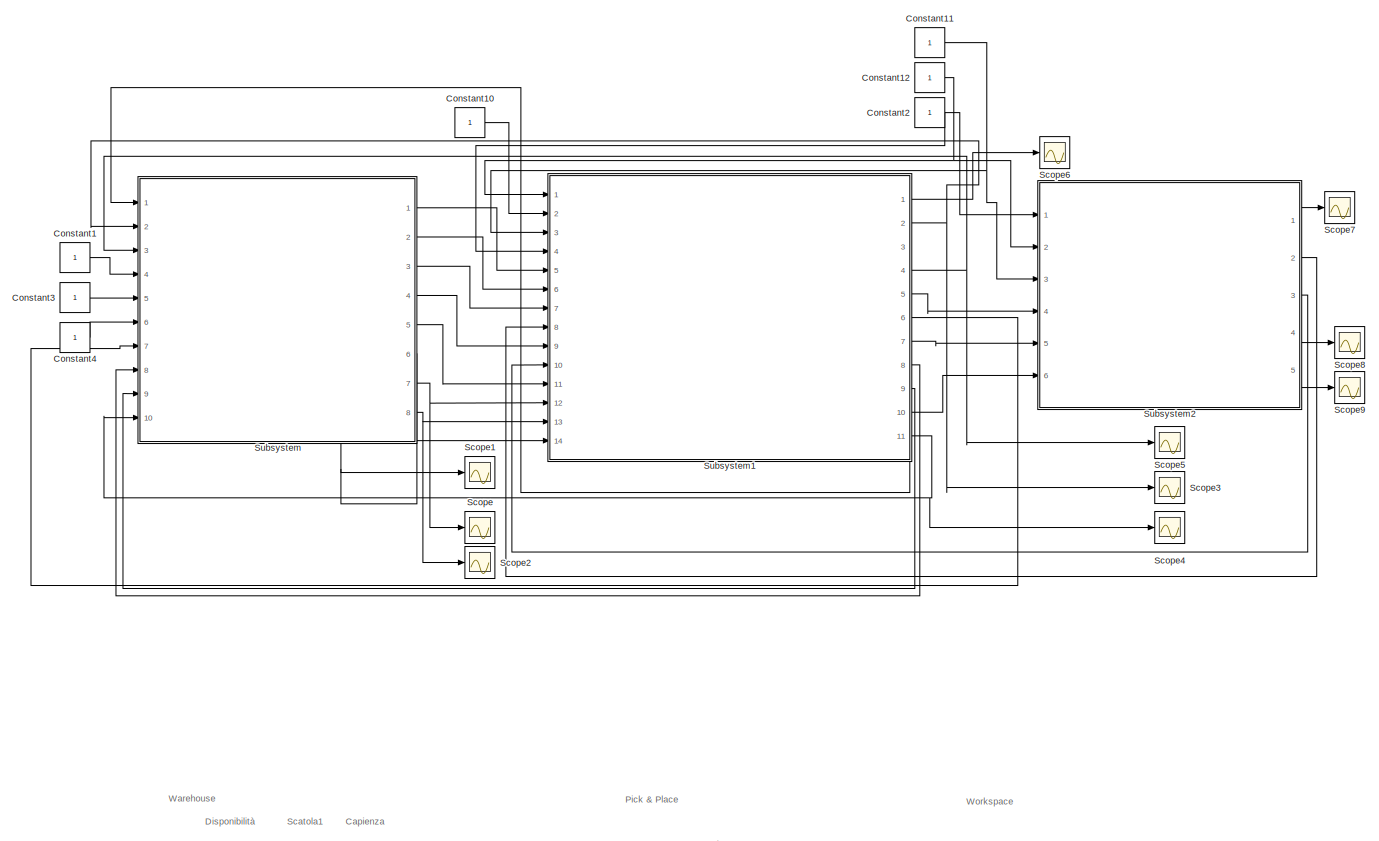
[diagram: root canvas - part 1/3, top left region]
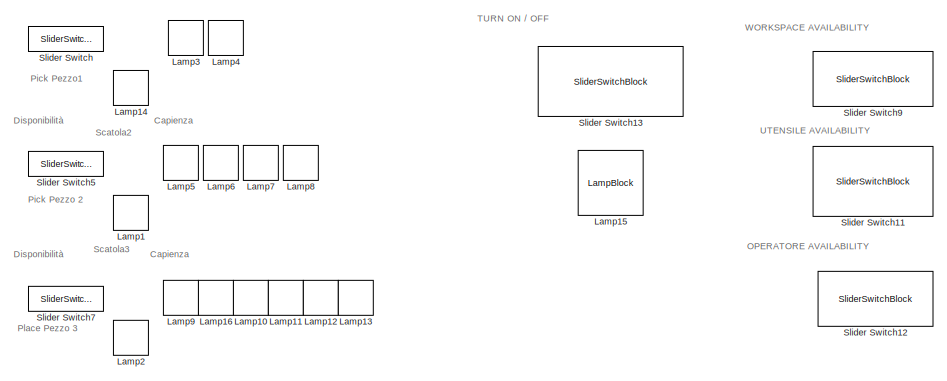
[diagram: root canvas - part 2/3, middle left region]
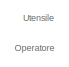
[diagram: root canvas - part 3/3, bottom right region]
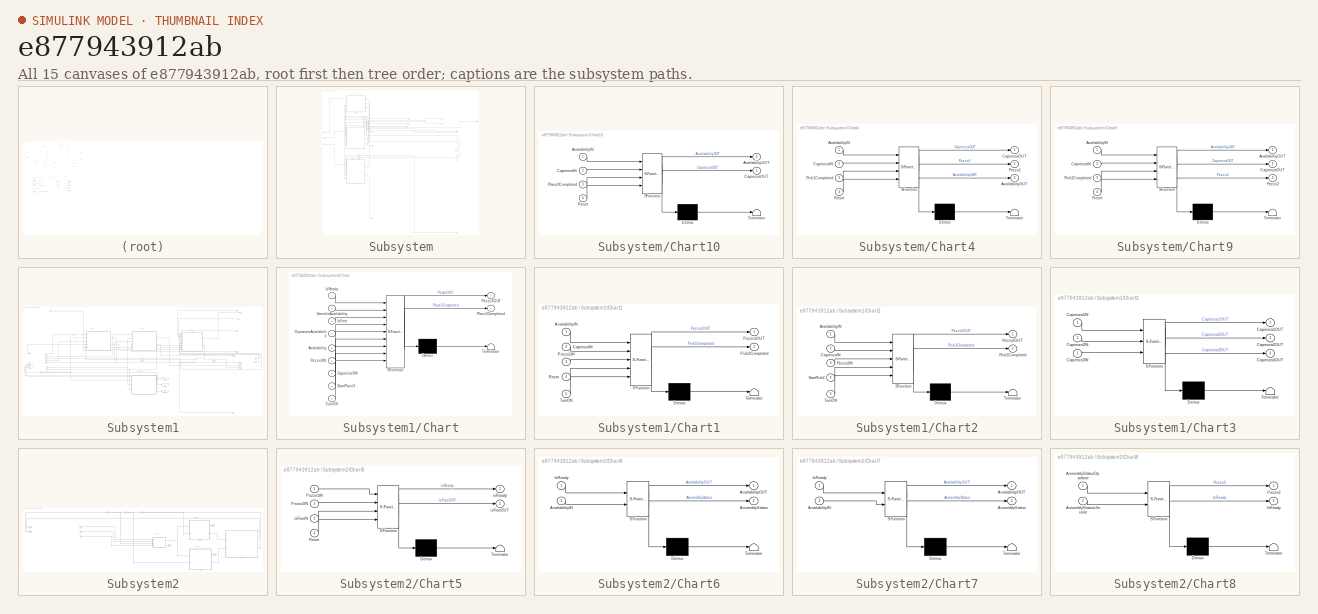
[diagram: thumbnail index - all 15 canvases of the model, root first then tree order]
MODEL slx_e877943912ab
KIND model
CONFIG AbsTol = auto
CONFIG EnableMultiTasking = off
CONFIG FixedStep = auto
CONFIG MaxStep = auto
CONFIG MinStep = auto
CONFIG RelTol = 1e-3
CONFIG SampleTimeConstraint = Unconstrained
CONFIG Solver = VariableStepAuto
CONFIG SolverName = VariableStepAuto
CONFIG StartTime = 0.0
CONFIG StopTime = inf
BLOCK [Constant] Constant1
BLOCK [Constant] Constant10
BLOCK [Constant] Constant11
BLOCK [Constant] Constant12
BLOCK [Constant] Constant2
BLOCK [Constant] Constant3
BLOCK [Constant] Constant4
BLOCK [LampBlock] Lamp1
BLOCK [LampBlock] Lamp10
BLOCK [LampBlock] Lamp11
BLOCK [LampBlock] Lamp12
BLOCK [LampBlock] Lamp13
BLOCK [LampBlock] Lamp14
BLOCK [LampBlock] Lamp15
BLOCK [LampBlock] Lamp16
BLOCK [LampBlock] Lamp2
BLOCK [LampBlock] Lamp3
BLOCK [LampBlock] Lamp4
BLOCK [LampBlock] Lamp5
BLOCK [LampBlock] Lamp6
BLOCK [LampBlock] Lamp7
BLOCK [LampBlock] Lamp8
BLOCK [LampBlock] Lamp9
BLOCK [Scope] Scope
  Floating = off
  NumInputPorts = 1
  Ports = [1]
  ScopeSpecificationString = Simulink.scopes.TimeScopeBlockCfg('CurrentConfiguration', extmgr.ConfigurationSet(extmgr.Configuration('Core','General UI',true),extmgr.Configuration('Core','Source UI',true),extmgr.Configuration('Sources','WiredSimulink',true),extmgr.Configuration('Visuals','Time Domain',true),extmgr.Configuration('Tools','Plot Navigation',true),extmgr.Configuration('Tools','Measurements',true)),'Version','2019a'...<+1ch>
BLOCK [Scope] Scope1
  Floating = off
  NumInputPorts = 1
  Ports = [1]
  ScopeSpecificationString = Simulink.scopes.TimeScopeBlockCfg('CurrentConfiguration', extmgr.ConfigurationSet(extmgr.Configuration('Core','General UI',true),extmgr.Configuration('Core','Source UI',true),extmgr.Configuration('Sources','WiredSimulink',true,'DataLoggingVariableName','ScopeData1'),extmgr.Configuration('Visuals','Time Domain',true),extmgr.Configuration('Tools','Plot Navigation',true),extmgr.Configuration('Tools',...<+40ch>
BLOCK [Scope] Scope2
  Floating = off
  NumInputPorts = 1
  Ports = [1]
  ScopeSpecificationString = Simulink.scopes.TimeScopeBlockCfg('CurrentConfiguration', extmgr.ConfigurationSet(extmgr.Configuration('Core','General UI',true),extmgr.Configuration('Core','Source UI',true),extmgr.Configuration('Sources','WiredSimulink',true,'DataLoggingVariableName','ScopeData2'),extmgr.Configuration('Visuals','Time Domain',true),extmgr.Configuration('Tools','Plot Navigation',true),extmgr.Configuration('Tools',...<+40ch>
BLOCK [Scope] Scope3
  Floating = off
  NumInputPorts = 1
  Ports = [1]
  ScopeSpecificationString = Simulink.scopes.TimeScopeBlockCfg('CurrentConfiguration', extmgr.ConfigurationSet(extmgr.Configuration('Core','General UI',true),extmgr.Configuration('Core','Source UI',true),extmgr.Configuration('Sources','WiredSimulink',true,'DataLoggingVariableName','ScopeData3'),extmgr.Configuration('Visuals','Time Domain',true,'SerializedDisplays',{struct('MinYLimReal','-1.00000','MaxYLimReal','1.00000','YLab...<+1384ch>
BLOCK [Scope] Scope4
  Floating = off
  NumInputPorts = 1
  Ports = [1]
  ScopeSpecificationString = Simulink.scopes.TimeScopeBlockCfg('CurrentConfiguration', extmgr.ConfigurationSet(extmgr.Configuration('Core','General UI',true),extmgr.Configuration('Core','Source UI',true),extmgr.Configuration('Sources','WiredSimulink',true,'DataLoggingVariableName','ScopeData4'),extmgr.Configuration('Visuals','Time Domain',true),extmgr.Configuration('Tools','Plot Navigation',true),extmgr.Configuration('Tools',...<+40ch>
BLOCK [Scope] Scope5
  Floating = off
  NumInputPorts = 1
  Ports = [1]
  ScopeSpecificationString = Simulink.scopes.TimeScopeBlockCfg('CurrentConfiguration', extmgr.ConfigurationSet(extmgr.Configuration('Core','General UI',true),extmgr.Configuration('Core','Source UI',true),extmgr.Configuration('Sources','WiredSimulink',true,'DataLoggingVariableName','ScopeData5'),extmgr.Configuration('Visuals','Time Domain',true),extmgr.Configuration('Tools','Plot Navigation',true),extmgr.Configuration('Tools',...<+40ch>
BLOCK [Scope] Scope6
  Floating = off
  NumInputPorts = 1
  Ports = [1]
  ScopeSpecificationString = Simulink.scopes.TimeScopeBlockCfg('CurrentConfiguration', extmgr.ConfigurationSet(extmgr.Configuration('Core','General UI',true),extmgr.Configuration('Core','Source UI',true),extmgr.Configuration('Sources','WiredSimulink',true,'DataLoggingVariableName','ScopeData1'),extmgr.Configuration('Visuals','Time Domain',true),extmgr.Configuration('Tools','Plot Navigation',true),extmgr.Configuration('Tools',...<+40ch>
BLOCK [Scope] Scope7
  Floating = off
  NumInputPorts = 1
  Ports = [1]
  ScopeSpecificationString = Simulink.scopes.TimeScopeBlockCfg('CurrentConfiguration', extmgr.ConfigurationSet(extmgr.Configuration('Core','General UI',true),extmgr.Configuration('Core','Source UI',true),extmgr.Configuration('Sources','WiredSimulink',true,'DataLoggingVariableName','ScopeData2'),extmgr.Configuration('Visuals','Time Domain',true),extmgr.Configuration('Tools','Plot Navigation',true),extmgr.Configuration('Tools',...<+40ch>
BLOCK [Scope] Scope8
  Floating = off
  NumInputPorts = 1
  Ports = [1]
  ScopeSpecificationString = Simulink.scopes.TimeScopeBlockCfg('CurrentConfiguration', extmgr.ConfigurationSet(extmgr.Configuration('Core','General UI',true),extmgr.Configuration('Core','Source UI',true),extmgr.Configuration('Sources','WiredSimulink',true,'DataLoggingVariableName','ScopeData3'),extmgr.Configuration('Visuals','Time Domain',true),extmgr.Configuration('Tools','Plot Navigation',true),extmgr.Configuration('Tools',...<+40ch>
BLOCK [Scope] Scope9
  Floating = off
  NumInputPorts = 1
  Ports = [1]
  ScopeSpecificationString = Simulink.scopes.TimeScopeBlockCfg('CurrentConfiguration', extmgr.ConfigurationSet(extmgr.Configuration('Core','General UI',true),extmgr.Configuration('Core','Source UI',true),extmgr.Configuration('Sources','WiredSimulink',true,'DataLoggingVariableName','ScopeData4'),extmgr.Configuration('Visuals','Time Domain',true),extmgr.Configuration('Tools','Plot Navigation',true),extmgr.Configuration('Tools',...<+40ch>
BLOCK [SliderSwitchBlock] Slider Switch
BLOCK [SliderSwitchBlock] Slider Switch11
BLOCK [SliderSwitchBlock] Slider Switch12
BLOCK [SliderSwitchBlock] Slider Switch13
BLOCK [SliderSwitchBlock] Slider Switch5
BLOCK [SliderSwitchBlock] Slider Switch7
BLOCK [SliderSwitchBlock] Slider Switch9
BLOCK [SubSystem] Subsystem
  Ports = [10, 8]
  RequestExecContextInheritance = off
BLOCK [SubSystem] Subsystem/Chart10
  BlockKeywords = __PRM__SERIALIZED__DATA__:Stateflow Chart,Stateflow Diagram
  ErrorFcn = Stateflow.Translate.translate
  PermitHierarchicalResolution = ExplicitOnly
  Ports = [4, 2]
  RequestExecContextInheritance = off
  SFBlockType = Chart
  TreatAsAtomicUnit = on
BLOCK [Demux] Subsystem/Chart10/ Demux 
  Outputs = 1
  Ports = [1, 1]
BLOCK [S-Function] Subsystem/Chart10/ SFunction 
  EnableBusSupport = on
  FunctionName = sf_sfun
  PortCounts = [4 3]
  Ports = [4, 3]
  SFcnIsStateOwnerBlock = off
  SFunctionDeploymentMode = off
  Tag = Stateflow S-Function simulink_model_complete 13
BLOCK [Terminator] Subsystem/Chart10/ Terminator 
BLOCK [Inport] Subsystem/Chart10/AvailabilityIN
  IconDisplay = Port number
BLOCK [Outport] Subsystem/Chart10/AvailabilityOUT
  IconDisplay = Port number
BLOCK [Inport] Subsystem/Chart10/CapienzaIN
  IconDisplay = Port number
  Port = 2
BLOCK [Outport] Subsystem/Chart10/CapienzaOUT
  IconDisplay = Port number
  Port = 2
BLOCK [Inport] Subsystem/Chart10/Place3Completed
  IconDisplay = Port number
  Port = 3
BLOCK [Inport] Subsystem/Chart10/Reset
  IconDisplay = Port number
  Port = 4
BLOCK [SubSystem] Subsystem/Chart4
  BlockKeywords = __PRM__SERIALIZED__DATA__:Stateflow Chart,Stateflow Diagram
  ErrorFcn = Stateflow.Translate.translate
  PermitHierarchicalResolution = ExplicitOnly
  Ports = [4, 3]
  RequestExecContextInheritance = off
  SFBlockType = Chart
  TreatAsAtomicUnit = on
BLOCK [Demux] Subsystem/Chart4/ Demux 
  Outputs = 1
  Ports = [1, 1]
BLOCK [S-Function] Subsystem/Chart4/ SFunction 
  EnableBusSupport = on
  FunctionName = sf_sfun
  PortCounts = [4 4]
  Ports = [4, 4]
  SFcnIsStateOwnerBlock = off
  SFunctionDeploymentMode = off
  Tag = Stateflow S-Function simulink_model_complete 5
BLOCK [Terminator] Subsystem/Chart4/ Terminator 
BLOCK [Inport] Subsystem/Chart4/AvailabilityIN
  IconDisplay = Port number
BLOCK [Outport] Subsystem/Chart4/AvailabilityOUT
  IconDisplay = Port number
  Port = 3
BLOCK [Inport] Subsystem/Chart4/CapienzaIN
  IconDisplay = Port number
  Port = 2
BLOCK [Outport] Subsystem/Chart4/CapienzaOUT
  IconDisplay = Port number
BLOCK [Outport] Subsystem/Chart4/Pezzo1
  IconDisplay = Port number
  Port = 2
BLOCK [Inport] Subsystem/Chart4/Pick1Completed
  IconDisplay = Port number
  Port = 3
BLOCK [Inport] Subsystem/Chart4/Reset
  IconDisplay = Port number
  Port = 4
BLOCK [SubSystem] Subsystem/Chart9
  BlockKeywords = __PRM__SERIALIZED__DATA__:Stateflow Chart,Stateflow Diagram
  ErrorFcn = Stateflow.Translate.translate
  PermitHierarchicalResolution = ExplicitOnly
  Ports = [4, 3]
  RequestExecContextInheritance = off
  SFBlockType = Chart
  TreatAsAtomicUnit = on
BLOCK [Demux] Subsystem/Chart9/ Demux 
  Outputs = 1
  Ports = [1, 1]
BLOCK [S-Function] Subsystem/Chart9/ SFunction 
  EnableBusSupport = on
  FunctionName = sf_sfun
  PortCounts = [4 4]
  Ports = [4, 4]
  SFcnIsStateOwnerBlock = off
  SFunctionDeploymentMode = off
  Tag = Stateflow S-Function simulink_model_complete 12
BLOCK [Terminator] Subsystem/Chart9/ Terminator 
BLOCK [Inport] Subsystem/Chart9/AvailabilityIN
  IconDisplay = Port number
BLOCK [Outport] Subsystem/Chart9/AvailabilityOUT
  IconDisplay = Port number
BLOCK [Inport] Subsystem/Chart9/CapienzaIN
  IconDisplay = Port number
  Port = 2
BLOCK [Outport] Subsystem/Chart9/CapienzaOUT
  IconDisplay = Port number
  Port = 2
BLOCK [Outport] Subsystem/Chart9/Pezzo2
  IconDisplay = Port number
  Port = 3
BLOCK [Inport] Subsystem/Chart9/Pick2Completed
  IconDisplay = Port number
  Port = 3
BLOCK [Inport] Subsystem/Chart9/Reset
  IconDisplay = Port number
  Port = 4
BLOCK [Inport] Subsystem/In1
  IconDisplay = Port number
BLOCK [Inport] Subsystem/In10
  IconDisplay = Port number
  Port = 10
BLOCK [Inport] Subsystem/In2
  IconDisplay = Port number
  Port = 2
BLOCK [Inport] Subsystem/In3
  IconDisplay = Port number
  Port = 3
BLOCK [Inport] Subsystem/In4
  IconDisplay = Port number
  Port = 4
BLOCK [Inport] Subsystem/In5
  IconDisplay = Port number
  Port = 5
BLOCK [Inport] Subsystem/In6
  IconDisplay = Port number
  Port = 6
BLOCK [Inport] Subsystem/In7
  IconDisplay = Port number
  Port = 7
BLOCK [Inport] Subsystem/In8
  IconDisplay = Port number
  Port = 8
BLOCK [Inport] Subsystem/In9
  IconDisplay = Port number
  Port = 9
BLOCK [Memory] Subsystem/Memory1
BLOCK [Memory] Subsystem/Memory2
BLOCK [Memory] Subsystem/Memory4
BLOCK [Memory] Subsystem/Memory5
BLOCK [Memory] Subsystem/Memory6
BLOCK [Memory] Subsystem/Memory7
BLOCK [Outport] Subsystem/Out1
  IconDisplay = Port number
BLOCK [Outport] Subsystem/Out2
  IconDisplay = Port number
  Port = 2
BLOCK [Outport] Subsystem/Out3
  IconDisplay = Port number
  Port = 3
BLOCK [Outport] Subsystem/Out4
  IconDisplay = Port number
  Port = 4
BLOCK [Outport] Subsystem/Out5
  IconDisplay = Port number
  Port = 5
BLOCK [Outport] Subsystem/Out6
  IconDisplay = Port number
  Port = 6
BLOCK [Outport] Subsystem/Out7
  IconDisplay = Port number
  Port = 7
BLOCK [Outport] Subsystem/Out8
  IconDisplay = Port number
  Port = 8
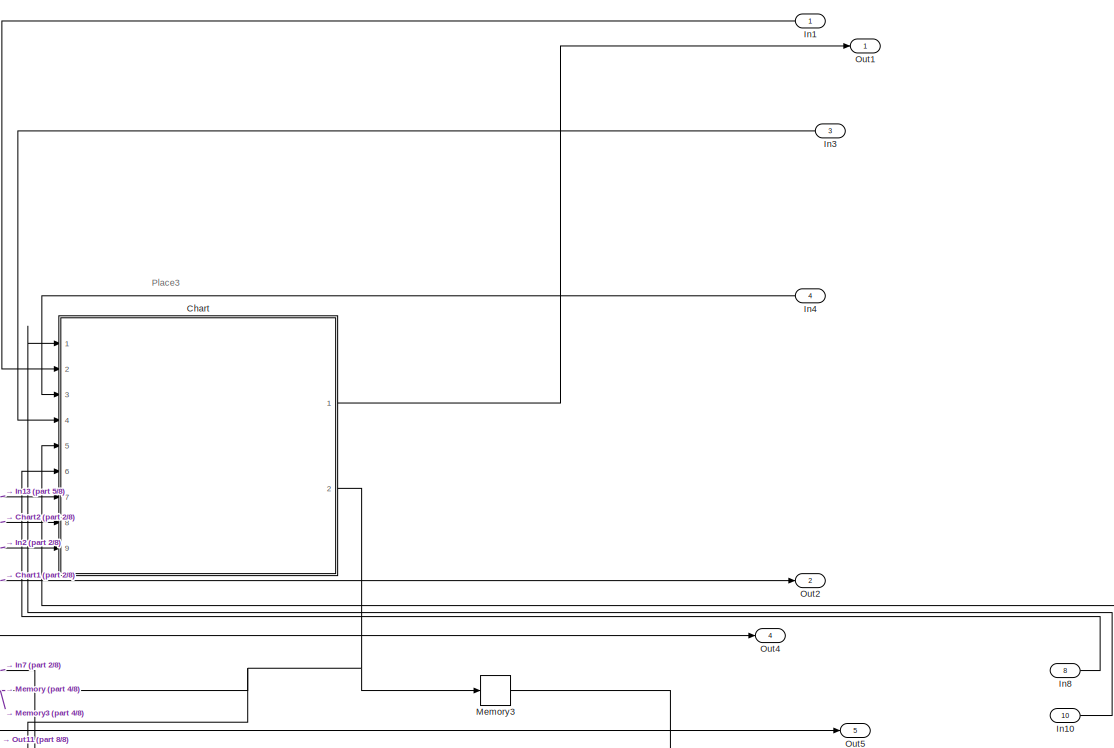
[diagram: Subsystem1 - part 1/8, top right region]
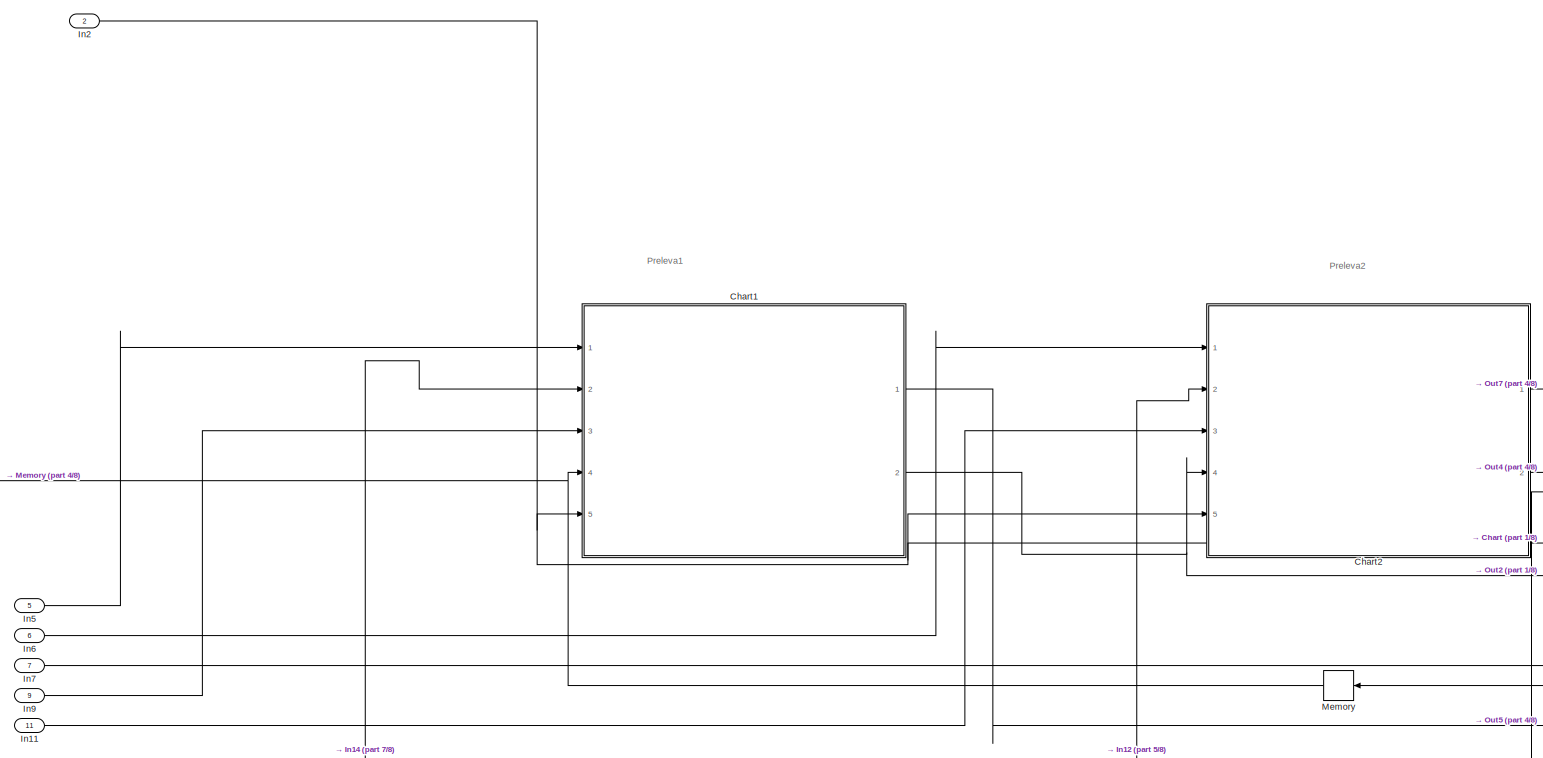
[diagram: Subsystem1 - part 2/8, top left region]
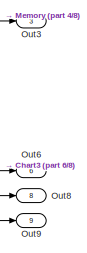
[diagram: Subsystem1 - part 3/8, middle left region]
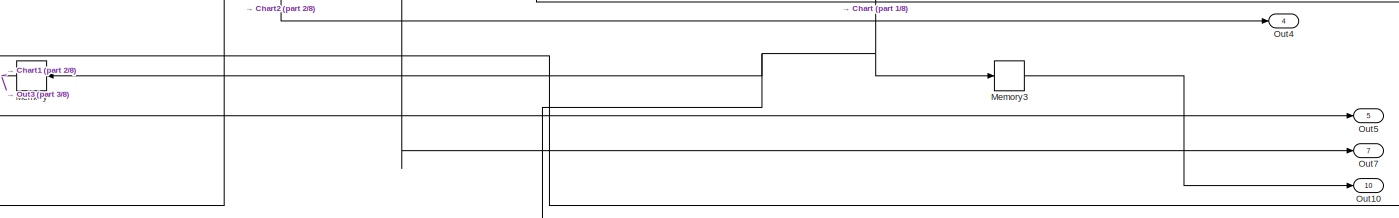
[diagram: Subsystem1 - part 4/8, middle right region]
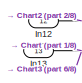
[diagram: Subsystem1 - part 5/8, middle left region]
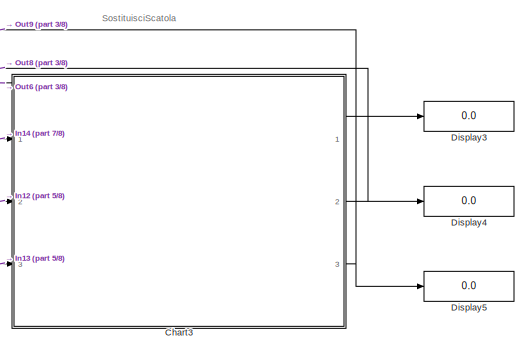
[diagram: Subsystem1 - part 6/8, bottom center region]
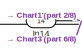
[diagram: Subsystem1 - part 7/8, middle left region]
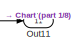
[diagram: Subsystem1 - part 8/8, bottom right region]
BLOCK [SubSystem] Subsystem1
  Ports = [14, 11]
  RequestExecContextInheritance = off
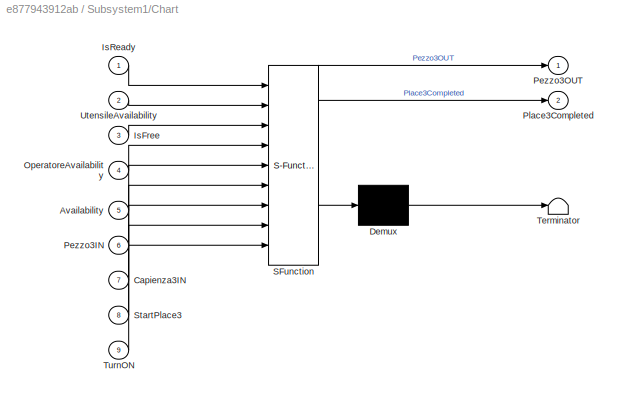
BLOCK [SubSystem] Subsystem1/Chart
  BlockKeywords = __PRM__SERIALIZED__DATA__:Stateflow Chart,Stateflow Diagram
  ErrorFcn = Stateflow.Translate.translate
  PermitHierarchicalResolution = ExplicitOnly
  Ports = [9, 2]
  RequestExecContextInheritance = off
  SFBlockType = Chart
  TreatAsAtomicUnit = on
BLOCK [Demux] Subsystem1/Chart/ Demux 
  Outputs = 1
  Ports = [1, 1]
BLOCK [S-Function] Subsystem1/Chart/ SFunction 
  EnableBusSupport = on
  FunctionName = sf_sfun
  PortCounts = [9 3]
  Ports = [9, 3]
  SFcnIsStateOwnerBlock = off
  SFunctionDeploymentMode = off
  Tag = Stateflow S-Function simulink_model_complete 3
BLOCK [Terminator] Subsystem1/Chart/ Terminator 
BLOCK [Inport] Subsystem1/Chart/Availability
  IconDisplay = Port number
  Port = 5
BLOCK [Inport] Subsystem1/Chart/Capienza3IN
  IconDisplay = Port number
  Port = 7
BLOCK [Inport] Subsystem1/Chart/IsFree
  IconDisplay = Port number
  Port = 3
BLOCK [Inport] Subsystem1/Chart/IsReady
  IconDisplay = Port number
BLOCK [Inport] Subsystem1/Chart/OperatoreAvailability
  IconDisplay = Port number
  Port = 4
BLOCK [Inport] Subsystem1/Chart/Pezzo3IN
  IconDisplay = Port number
  Port = 6
BLOCK [Outport] Subsystem1/Chart/Pezzo3OUT
  IconDisplay = Port number
BLOCK [Outport] Subsystem1/Chart/Place3Completed
  IconDisplay = Port number
  Port = 2
BLOCK [Inport] Subsystem1/Chart/StartPlace3
  IconDisplay = Port number
  Port = 8
BLOCK [Inport] Subsystem1/Chart/TurnON
  IconDisplay = Port number
  Port = 9
BLOCK [Inport] Subsystem1/Chart/UtensileAvailability
  IconDisplay = Port number
  Port = 2
BLOCK [SubSystem] Subsystem1/Chart1
  BlockKeywords = __PRM__SERIALIZED__DATA__:Stateflow Chart,Stateflow Diagram
  ErrorFcn = Stateflow.Translate.translate
  PermitHierarchicalResolution = ExplicitOnly
  Ports = [5, 2]
  RequestExecContextInheritance = off
  SFBlockType = Chart
  TreatAsAtomicUnit = on
BLOCK [Demux] Subsystem1/Chart1/ Demux 
  Outputs = 1
  Ports = [1, 1]
BLOCK [S-Function] Subsystem1/Chart1/ SFunction 
  EnableBusSupport = on
  FunctionName = sf_sfun
  PortCounts = [5 3]
  Ports = [5, 3]
  SFcnIsStateOwnerBlock = off
  SFunctionDeploymentMode = off
  Tag = Stateflow S-Function simulink_model_complete 1
BLOCK [Terminator] Subsystem1/Chart1/ Terminator 
BLOCK [Inport] Subsystem1/Chart1/AvailabilityIN
  IconDisplay = Port number
BLOCK [Inport] Subsystem1/Chart1/CapienzaIN
  IconDisplay = Port number
  Port = 2
BLOCK [Inport] Subsystem1/Chart1/Pezzo1IN
  IconDisplay = Port number
  Port = 3
BLOCK [Outport] Subsystem1/Chart1/Pezzo1OUT
  IconDisplay = Port number
BLOCK [Outport] Subsystem1/Chart1/Pick1Completed
  IconDisplay = Port number
  Port = 2
BLOCK [Inport] Subsystem1/Chart1/Reset
  IconDisplay = Port number
  Port = 4
BLOCK [Inport] Subsystem1/Chart1/TurnON
  IconDisplay = Port number
  Port = 5
BLOCK [SubSystem] Subsystem1/Chart2
  BlockKeywords = __PRM__SERIALIZED__DATA__:Stateflow Chart,Stateflow Diagram
  ErrorFcn = Stateflow.Translate.translate
  PermitHierarchicalResolution = ExplicitOnly
  Ports = [5, 2]
  RequestExecContextInheritance = off
  SFBlockType = Chart
  TreatAsAtomicUnit = on
BLOCK [Demux] Subsystem1/Chart2/ Demux 
  Outputs = 1
  Ports = [1, 1]
BLOCK [S-Function] Subsystem1/Chart2/ SFunction 
  EnableBusSupport = on
  FunctionName = sf_sfun
  PortCounts = [5 3]
  Ports = [5, 3]
  SFcnIsStateOwnerBlock = off
  SFunctionDeploymentMode = off
  Tag = Stateflow S-Function simulink_model_complete 2
BLOCK [Terminator] Subsystem1/Chart2/ Terminator 
BLOCK [Inport] Subsystem1/Chart2/AvailabilityIN
  IconDisplay = Port number
BLOCK [Inport] Subsystem1/Chart2/CapienzaIN
  IconDisplay = Port number
  Port = 2
BLOCK [Inport] Subsystem1/Chart2/Pezzo2IN
  IconDisplay = Port number
  Port = 3
BLOCK [Outport] Subsystem1/Chart2/Pezzo2OUT
  IconDisplay = Port number
BLOCK [Outport] Subsystem1/Chart2/Pick2Completed
  IconDisplay = Port number
  Port = 2
BLOCK [Inport] Subsystem1/Chart2/StartPick2
  IconDisplay = Port number
  Port = 4
BLOCK [Inport] Subsystem1/Chart2/TurnON
  IconDisplay = Port number
  Port = 5
BLOCK [SubSystem] Subsystem1/Chart3
  BlockKeywords = __PRM__SERIALIZED__DATA__:Stateflow Chart,Stateflow Diagram
  ErrorFcn = Stateflow.Translate.translate
  PermitHierarchicalResolution = ExplicitOnly
  Ports = [3, 3]
  RequestExecContextInheritance = off
  SFBlockType = Chart
  TreatAsAtomicUnit = on
BLOCK [Demux] Subsystem1/Chart3/ Demux 
  Outputs = 1
  Ports = [1, 1]
BLOCK [S-Function] Subsystem1/Chart3/ SFunction 
  EnableBusSupport = on
  FunctionName = sf_sfun
  PortCounts = [3 4]
  Ports = [3, 4]
  SFcnIsStateOwnerBlock = off
  SFunctionDeploymentMode = off
  Tag = Stateflow S-Function simulink_model_complete 4
BLOCK [Terminator] Subsystem1/Chart3/ Terminator 
BLOCK [Inport] Subsystem1/Chart3/Capienza1IN
  IconDisplay = Port number
BLOCK [Outport] Subsystem1/Chart3/Capienza1OUT
  IconDisplay = Port number
BLOCK [Inport] Subsystem1/Chart3/Capienza2IN
  IconDisplay = Port number
  Port = 2
BLOCK [Outport] Subsystem1/Chart3/Capienza2OUT
  IconDisplay = Port number
  Port = 2
BLOCK [Inport] Subsystem1/Chart3/Capienza3IN
  IconDisplay = Port number
  Port = 3
BLOCK [Outport] Subsystem1/Chart3/Capienza3OUT
  IconDisplay = Port number
  Port = 3
BLOCK [Display] Subsystem1/Display3
  Decimation = 1
  Ports = [1]
BLOCK [Display] Subsystem1/Display4
  Decimation = 1
  Ports = [1]
BLOCK [Display] Subsystem1/Display5
  Decimation = 1
  Ports = [1]
BLOCK [Inport] Subsystem1/In1
  IconDisplay = Port number
BLOCK [Inport] Subsystem1/In10
  IconDisplay = Port number
  Port = 10
BLOCK [Inport] Subsystem1/In11
  IconDisplay = Port number
  Port = 11
BLOCK [Inport] Subsystem1/In12
  IconDisplay = Port number
  Port = 12
BLOCK [Inport] Subsystem1/In13
  IconDisplay = Port number
  Port = 13
BLOCK [Inport] Subsystem1/In14
  IconDisplay = Port number
  Port = 14
BLOCK [Inport] Subsystem1/In2
  IconDisplay = Port number
  Port = 2
BLOCK [Inport] Subsystem1/In3
  IconDisplay = Port number
  Port = 3
BLOCK [Inport] Subsystem1/In4
  IconDisplay = Port number
  Port = 4
BLOCK [Inport] Subsystem1/In5
  IconDisplay = Port number
  Port = 5
BLOCK [Inport] Subsystem1/In6
  IconDisplay = Port number
  Port = 6
BLOCK [Inport] Subsystem1/In7
  IconDisplay = Port number
  Port = 7
BLOCK [Inport] Subsystem1/In8
  IconDisplay = Port number
  Port = 8
BLOCK [Inport] Subsystem1/In9
  IconDisplay = Port number
  Port = 9
BLOCK [Memory] Subsystem1/Memory
BLOCK [Memory] Subsystem1/Memory3
BLOCK [Outport] Subsystem1/Out1
  IconDisplay = Port number
BLOCK [Outport] Subsystem1/Out10
  IconDisplay = Port number
  Port = 10
BLOCK [Outport] Subsystem1/Out11
  IconDisplay = Port number
  Port = 11
BLOCK [Outport] Subsystem1/Out2
  IconDisplay = Port number
  Port = 2
BLOCK [Outport] Subsystem1/Out3
  IconDisplay = Port number
  Port = 3
BLOCK [Outport] Subsystem1/Out4
  IconDisplay = Port number
  Port = 4
BLOCK [Outport] Subsystem1/Out5
  IconDisplay = Port number
  Port = 5
BLOCK [Outport] Subsystem1/Out6
  IconDisplay = Port number
  Port = 6
BLOCK [Outport] Subsystem1/Out7
  IconDisplay = Port number
  Port = 7
BLOCK [Outport] Subsystem1/Out8
  IconDisplay = Port number
  Port = 8
BLOCK [Outport] Subsystem1/Out9
  IconDisplay = Port number
  Port = 9
BLOCK [SubSystem] Subsystem2
  Ports = [6, 5]
  RequestExecContextInheritance = off
BLOCK [SubSystem] Subsystem2/Chart5
  BlockKeywords = __PRM__SERIALIZED__DATA__:Stateflow Chart,Stateflow Diagram
  ErrorFcn = Stateflow.Translate.translate
  PermitHierarchicalResolution = ExplicitOnly
  Ports = [4, 2]
  RequestExecContextInheritance = off
  SFBlockType = Chart
  TreatAsAtomicUnit = on
BLOCK [Demux] Subsystem2/Chart5/ Demux 
  Outputs = 1
  Ports = [1, 1]
BLOCK [S-Function] Subsystem2/Chart5/ SFunction 
  EnableBusSupport = on
  FunctionName = sf_sfun
  PortCounts = [4 3]
  Ports = [4, 3]
  SFcnIsStateOwnerBlock = off
  SFunctionDeploymentMode = off
  Tag = Stateflow S-Function simulink_model_complete 7
BLOCK [Terminator] Subsystem2/Chart5/ Terminator 
BLOCK [Inport] Subsystem2/Chart5/Pezzo1IN
  IconDisplay = Port number
BLOCK [Inport] Subsystem2/Chart5/Pezzo2IN
  IconDisplay = Port number
  Port = 2
BLOCK [Inport] Subsystem2/Chart5/Reset
  IconDisplay = Port number
  Port = 4
BLOCK [Inport] Subsystem2/Chart5/isFreeIN
  IconDisplay = Port number
  Port = 3
BLOCK [Outport] Subsystem2/Chart5/isFreeOUT
  IconDisplay = Port number
  Port = 2
  VectorParamsAs1DForOutWhenUnconnected = on
BLOCK [Outport] Subsystem2/Chart5/isReady
  IconDisplay = Port number
  VectorParamsAs1DForOutWhenUnconnected = on
BLOCK [SubSystem] Subsystem2/Chart6
  BlockKeywords = __PRM__SERIALIZED__DATA__:Stateflow Chart,Stateflow Diagram
  ErrorFcn = Stateflow.Translate.translate
  PermitHierarchicalResolution = ExplicitOnly
  Ports = [2, 2]
  RequestExecContextInheritance = off
  SFBlockType = Chart
  TreatAsAtomicUnit = on
BLOCK [Demux] Subsystem2/Chart6/ Demux 
  Outputs = 1
  Ports = [1, 1]
BLOCK [S-Function] Subsystem2/Chart6/ SFunction 
  EnableBusSupport = on
  FunctionName = sf_sfun
  PortCounts = [2 3]
  Ports = [2, 3]
  SFcnIsStateOwnerBlock = off
  SFunctionDeploymentMode = off
  Tag = Stateflow S-Function simulink_model_complete 8
BLOCK [Terminator] Subsystem2/Chart6/ Terminator 
BLOCK [Outport] Subsystem2/Chart6/AssemblyStatus
  IconDisplay = Port number
  Port = 2
  VectorParamsAs1DForOutWhenUnconnected = on
BLOCK [Inport] Subsystem2/Chart6/AvailabilityIN
  IconDisplay = Port number
  Port = 2
BLOCK [Outport] Subsystem2/Chart6/AvailabilityOUT
  IconDisplay = Port number
  VectorParamsAs1DForOutWhenUnconnected = on
BLOCK [Inport] Subsystem2/Chart6/IsReady
  IconDisplay = Port number
BLOCK [SubSystem] Subsystem2/Chart7
  BlockKeywords = __PRM__SERIALIZED__DATA__:Stateflow Chart,Stateflow Diagram
  ErrorFcn = Stateflow.Translate.translate
  PermitHierarchicalResolution = ExplicitOnly
  Ports = [2, 2]
  RequestExecContextInheritance = off
  SFBlockType = Chart
  TreatAsAtomicUnit = on
BLOCK [Demux] Subsystem2/Chart7/ Demux 
  Outputs = 1
  Ports = [1, 1]
BLOCK [S-Function] Subsystem2/Chart7/ SFunction 
  EnableBusSupport = on
  FunctionName = sf_sfun
  PortCounts = [2 3]
  Ports = [2, 3]
  SFcnIsStateOwnerBlock = off
  SFunctionDeploymentMode = off
  Tag = Stateflow S-Function simulink_model_complete 9
BLOCK [Terminator] Subsystem2/Chart7/ Terminator 
BLOCK [Outport] Subsystem2/Chart7/AssemblyStatus
  IconDisplay = Port number
  Port = 2
  VectorParamsAs1DForOutWhenUnconnected = on
BLOCK [Inport] Subsystem2/Chart7/AvailabilityIN
  IconDisplay = Port number
  Port = 2
BLOCK [Outport] Subsystem2/Chart7/AvailabilityOUT
  IconDisplay = Port number
  VectorParamsAs1DForOutWhenUnconnected = on
BLOCK [Inport] Subsystem2/Chart7/IsReady
  IconDisplay = Port number
BLOCK [SubSystem] Subsystem2/Chart8
  BlockKeywords = __PRM__SERIALIZED__DATA__:Stateflow Chart,Stateflow Diagram
  ErrorFcn = Stateflow.Translate.translate
  PermitHierarchicalResolution = ExplicitOnly
  Ports = [2, 2]
  RequestExecContextInheritance = off
  SFBlockType = Chart
  TreatAsAtomicUnit = on
BLOCK [Demux] Subsystem2/Chart8/ Demux 
  Outputs = 1
  Ports = [1, 1]
BLOCK [S-Function] Subsystem2/Chart8/ SFunction 
  EnableBusSupport = on
  FunctionName = sf_sfun
  PortCounts = [2 3]
  Ports = [2, 3]
  SFcnIsStateOwnerBlock = off
  SFunctionDeploymentMode = off
  Tag = Stateflow S-Function simulink_model_complete 10
BLOCK [Terminator] Subsystem2/Chart8/ Terminator 
BLOCK [Inport] Subsystem2/Chart8/AssemblyStatusOparatore
  IconDisplay = Port number
BLOCK [Inport] Subsystem2/Chart8/AssemblyStatusUtensile
  IconDisplay = Port number
  Port = 2
BLOCK [Outport] Subsystem2/Chart8/IsReady
  IconDisplay = Port number
  Port = 2
  VectorParamsAs1DForOutWhenUnconnected = on
BLOCK [Outport] Subsystem2/Chart8/Pezzo3
  IconDisplay = Port number
  VectorParamsAs1DForOutWhenUnconnected = on
BLOCK [Inport] Subsystem2/In1
  IconDisplay = Port number
BLOCK [Inport] Subsystem2/In2
  IconDisplay = Port number
  Port = 2
BLOCK [Inport] Subsystem2/In3
  IconDisplay = Port number
  Port = 3
BLOCK [Inport] Subsystem2/In4
  IconDisplay = Port number
  Port = 4
BLOCK [Inport] Subsystem2/In5
  IconDisplay = Port number
  Port = 5
BLOCK [Inport] Subsystem2/In6
  IconDisplay = Port number
  Port = 6
BLOCK [Outport] Subsystem2/Out1
  IconDisplay = Port number
BLOCK [Outport] Subsystem2/Out2
  IconDisplay = Port number
  Port = 2
BLOCK [Outport] Subsystem2/Out3
  IconDisplay = Port number
  Port = 3
BLOCK [Outport] Subsystem2/Out4
  IconDisplay = Port number
  Port = 4
BLOCK [Outport] Subsystem2/Out5
  IconDisplay = Port number
  Port = 5
ANNOTATION (root): TURN ON / OFF
ANNOTATION (root): Capienza
ANNOTATION (root): Disponibilità
ANNOTATION (root): OPERATORE AVAILABILITY
ANNOTATION (root): Operatore
ANNOTATION (root): Pick & Place
ANNOTATION (root): Pick Pezzo 2
ANNOTATION (root): Pick Pezzo1
ANNOTATION (root): Place Pezzo 3
ANNOTATION (root): Scatola1
ANNOTATION (root): Scatola2
ANNOTATION (root): Scatola3
ANNOTATION (root): UTENSILE AVAILABILITY
ANNOTATION (root): Utensile
ANNOTATION (root): WORKSPACE AVAILABILITY
ANNOTATION (root): Warehouse
ANNOTATION (root): Workspace
ANNOTATION Subsystem: Scatola1
ANNOTATION Subsystem: Scatola2
ANNOTATION Subsystem: Scatola3
ANNOTATION Subsystem1: Place3
ANNOTATION Subsystem1: Preleva1
ANNOTATION Subsystem1: Preleva2
ANNOTATION Subsystem1: SostituisciScatola
ANNOTATION Subsystem2: Check
ANNOTATION Subsystem2: Operatore
ANNOTATION Subsystem2: Utensile
LINE Constant10:1 -> Subsystem1:2
NET Constant11:1 -> Subsystem1:3, Subsystem2:3
NET Constant12:1 -> Subsystem1:1, Subsystem2:2
LINE Constant1:1 -> Subsystem:4
NET Constant2:1 -> Subsystem1:4, Subsystem2:1
LINE Constant3:1 -> Subsystem:5
LINE Constant4:1 -> Subsystem:6
LINE Subsystem/Chart10:1 -> Subsystem/Out3:1
LINE Subsystem/Chart10:2 -> Subsystem/Out8:1
LINE Subsystem/Chart4:1 -> Subsystem/Out6:1
LINE Subsystem/Chart4:2 -> Subsystem/Out4:1
LINE Subsystem/Chart4:3 -> Subsystem/Out1:1
LINE Subsystem/Chart9:1 -> Subsystem/Out2:1
LINE Subsystem/Chart9:2 -> Subsystem/Out7:1
LINE Subsystem/Chart9:3 -> Subsystem/Out5:1
LINE Subsystem/In10:1 -> Subsystem/Memory6:1
NET Subsystem/In1:1 -> Subsystem/Chart4:4, Subsystem/Chart9:4
LINE Subsystem/In2:1 -> Subsystem/Memory2:1
LINE Subsystem/In3:1 -> Subsystem/Memory5:1
LINE Subsystem/In4:1 -> Subsystem/Chart4:1
LINE Subsystem/In5:1 -> Subsystem/Chart9:1
LINE Subsystem/In6:1 -> Subsystem/Chart10:1
LINE Subsystem/In7:1 -> Subsystem/Memory1:1
LINE Subsystem/In8:1 -> Subsystem/Memory4:1
LINE Subsystem/In9:1 -> Subsystem/Memory7:1
LINE Subsystem/Memory1:1 -> Subsystem/Chart4:2
NET Subsystem/Memory2:1 -> Subsystem/Chart10:4, Subsystem/Chart4:3
LINE Subsystem/Memory4:1 -> Subsystem/Chart9:2
LINE Subsystem/Memory5:1 -> Subsystem/Chart9:3
LINE Subsystem/Memory6:1 -> Subsystem/Chart10:3
LINE Subsystem/Memory7:1 -> Subsystem/Chart10:2
LINE Subsystem1/Chart1:1 -> Subsystem1/Out5:1
NET Subsystem1/Chart1:2 -> Subsystem1/Chart2:4, Subsystem1/Out2:1
LINE Subsystem1/Chart2:1 -> Subsystem1/Out7:1
NET Subsystem1/Chart2:2 -> Subsystem1/Chart:8, Subsystem1/Out4:1
NET Subsystem1/Chart3:1 -> Subsystem1/Display3:1, Subsystem1/Out6:1
NET Subsystem1/Chart3:2 -> Subsystem1/Display4:1, Subsystem1/Out8:1
NET Subsystem1/Chart3:3 -> Subsystem1/Display5:1, Subsystem1/Out9:1
LINE Subsystem1/Chart:1 -> Subsystem1/Out1:1
NET Subsystem1/Chart:2 -> Subsystem1/Memory3:1, Subsystem1/Memory:1, Subsystem1/Out11:1
LINE Subsystem1/In10:1 -> Subsystem1/Chart:1
LINE Subsystem1/In11:1 -> Subsystem1/Chart2:3
NET Subsystem1/In12:1 -> Subsystem1/Chart2:2, Subsystem1/Chart3:2
NET Subsystem1/In13:1 -> Subsystem1/Chart3:3, Subsystem1/Chart:7
NET Subsystem1/In14:1 -> Subsystem1/Chart1:2, Subsystem1/Chart3:1
LINE Subsystem1/In1:1 -> Subsystem1/Chart:2
NET Subsystem1/In2:1 -> Subsystem1/Chart1:5, Subsystem1/Chart2:5, Subsystem1/Chart:9
LINE Subsystem1/In3:1 -> Subsystem1/Chart:4
LINE Subsystem1/In4:1 -> Subsystem1/Chart:3
LINE Subsystem1/In5:1 -> Subsystem1/Chart1:1
LINE Subsystem1/In6:1 -> Subsystem1/Chart2:1
LINE Subsystem1/In7:1 -> Subsystem1/Chart:5
LINE Subsystem1/In8:1 -> Subsystem1/Chart:6
LINE Subsystem1/In9:1 -> Subsystem1/Chart1:3
LINE Subsystem1/Memory3:1 -> Subsystem1/Out10:1
NET Subsystem1/Memory:1 -> Subsystem1/Chart1:4, Subsystem1/Out3:1
LINE Subsystem1:1 -> Scope6:1
LINE Subsystem1:10 -> Subsystem2:6
NET Subsystem1:11 -> Scope4:1, Subsystem:10
NET Subsystem1:2 -> Scope3:1, Subsystem:2
LINE Subsystem1:3 -> Subsystem:1
NET Subsystem1:4 -> Scope5:1, Subsystem:3
LINE Subsystem1:5 -> Subsystem2:4
LINE Subsystem1:6 -> Subsystem:7
LINE Subsystem1:7 -> Subsystem2:5
LINE Subsystem1:8 -> Subsystem:8
LINE Subsystem1:9 -> Subsystem:9
NET Subsystem2/Chart5:1 -> Subsystem2/Chart6:1, Subsystem2/Chart7:1
LINE Subsystem2/Chart5:2 -> Subsystem2/Out4:1
LINE Subsystem2/Chart6:1 -> Subsystem2/Out1:1
LINE Subsystem2/Chart6:2 -> Subsystem2/Chart8:1
LINE Subsystem2/Chart7:1 -> Subsystem2/Out5:1
LINE Subsystem2/Chart7:2 -> Subsystem2/Chart8:2
LINE Subsystem2/Chart8:1 -> Subsystem2/Out2:1
LINE Subsystem2/Chart8:2 -> Subsystem2/Out3:1
LINE Subsystem2/In1:1 -> Subsystem2/Chart5:3
LINE Subsystem2/In2:1 -> Subsystem2/Chart7:2
LINE Subsystem2/In3:1 -> Subsystem2/Chart6:2
LINE Subsystem2/In4:1 -> Subsystem2/Chart5:1
LINE Subsystem2/In5:1 -> Subsystem2/Chart5:2
LINE Subsystem2/In6:1 -> Subsystem2/Chart5:4
LINE Subsystem2:1 -> Scope7:1
LINE Subsystem2:2 -> Subsystem1:8
LINE Subsystem2:3 -> Subsystem1:10
LINE Subsystem2:4 -> Scope8:1
LINE Subsystem2:5 -> Scope9:1
LINE Subsystem:1 -> Subsystem1:5
LINE Subsystem:2 -> Subsystem1:6
LINE Subsystem:3 -> Subsystem1:7
LINE Subsystem:4 -> Subsystem1:9
LINE Subsystem:5 -> Subsystem1:11
NET Subsystem:6 -> Scope1:1, Subsystem1:14
NET Subsystem:7 -> Scope:1, Subsystem1:12
NET Subsystem:8 -> Scope2:1, Subsystem1:13
note: NET lines group one-source signal fan-out (src -> all destinations, sorted); 1:1 wires keep LINE
CHART Subsystem1/Chart1 states=6 transitions=11
  STATE_LABEL 'Idle\nPezzo1OUT=0;\nPick1Completed=0;'
  STATE_LABEL 'Waiting\nPezzo1OUT=0;\nPick1Completed=0;'
  STATE_LABEL 'Active'
  STATE_LABEL 'Working'
  STATE_LABEL 'Place\nduring:\nPezzo1OUT=1;\nPick1Completed = 1;'
  STATE_LABEL 'Pick\npause(0.1);'
CHART Subsystem1/Chart2 states=6 transitions=11
  STATE_LABEL 'Idle\nPezzo2OUT=0;\nPick2Completed=0;'
  STATE_LABEL 'Waiting\nPezzo2OUT=0;\nPick2Completed=0;'
  STATE_LABEL 'Active'
  STATE_LABEL 'Working'
  STATE_LABEL 'Place\nduring:\nPezzo2OUT=1;\nPick2Completed = 1;\npause(0.1);'
  STATE_LABEL 'Pick\npause(0.1);'
CHART Subsystem1/Chart states=6 transitions=11
  STATE_LABEL 'Idle\nPezzo3OUT=0;\nPlace3Completed=0;'
  STATE_LABEL 'Waiting\nPezzo3OUT=0;\nPlace3Completed=0;'
  STATE_LABEL 'Active1'
  STATE_LABEL 'Working'
  STATE_LABEL 'Place\nduring:\nPezzo3OUT=1;\nPlace3Completed = 1;\npause(0.1);'
  STATE_LABEL 'Pick\npause(0.1);'
CHART Subsystem1/Chart3 states=4 transitions=7
  STATE_LABEL 'Idle\nCapienza1OUT=0;\nCapienza2OUT=0;\nCapienza3OUT=0;'
  STATE_LABEL 'Scatola1Expired\nCapienza1OUT=1;'
  STATE_LABEL 'Scatola2Expired\nCapienza2OUT=1;'
  STATE_LABEL 'Scatola3Expired\nCapienza3OUT=1;'
CHART Subsystem/Chart4 states=6 transitions=7
  STATE_LABEL 'Idle\nCapienzaOUT=2;\nAvailabilityOUT=AvailabilityIN;\npause(0.1);'
  STATE_LABEL 'Capienza2\nCapienzaOUT=2;\nPezzo1=1;\nAvailabilityOUT=AvailabilityIN;\npause(0.1);'
  STATE_LABEL 'Waiting\nCapienzaOUT=1;'
  STATE_LABEL 'Capienza1\nCapienzaOUT=1;\nPezzo1=1;\nAvailabilityOUT=AvailabilityIN;\npause(0.1);'
  STATE_LABEL 'Waiting1\nCapienzaOUT=0;'
  STATE_LABEL 'Capienza0\nCapienzaOUT=0;\nPezzo1=0;\nAvailabilityOUT=AvailabilityIN;\npause(0.1);'
CHART Subsystem2/Chart5 states=4 transitions=5
  STATE_LABEL 'Idle\nisReady = 0;'
  STATE_LABEL 'Pezzo1Available\n'
  STATE_LABEL 'Pezzo2Available\n'
  STATE_LABEL 'Check\n isReady = 1;\n isFreeOUT = 1;'
CHART Subsystem2/Chart6 states=1 transitions=1
  STATE_LABEL 'CheckDisponibility\nif IsReady == 1 && AvailabilityIN == 1\n    AvailabilityOUT = AvailabilityIN;\n    AssemblyStatus = 1;\nend\n'
CHART Subsystem2/Chart7 states=1 transitions=1
  STATE_LABEL 'CheckDisponibility\nif IsReady == 1 && AvailabilityIN == 1\n    AvailabilityOUT = AvailabilityIN;\n    AssemblyStatus = 1;\nend'
CHART Subsystem2/Chart8 states=1 transitions=1
  STATE_LABEL 'Montage\nif AssemblyStatusOparatore == 1 || AssemblyStatusUtensile == 1\n    IsReady = 1;\n    Pezzo3 = 1;\nend'
CHART Subsystem/Chart9 states=10 transitions=11
  STATE_LABEL 'Idle\nCapienzaOUT=4;\nAvailabilityOUT=AvailabilityIN;\npause(0.1);'
  STATE_LABEL 'Capienza4\nCapienzaOUT=4;\nPezzo2=1;\nAvailabilityOUT=AvailabilityIN;\npause(0.1);'
  STATE_LABEL 'Waiting3\nCapienzaOUT=3;'
  STATE_LABEL 'Capienza3\nCapienzaOUT=3;\nPezzo2=1;\nAvailabilityOUT=AvailabilityIN;\npause(0.1);'
  STATE_LABEL 'Waiting2\nCapienzaOUT=2;'
  STATE_LABEL 'Capienza2\nCapienzaOUT=2;\nPezzo2=1;\nAvailabilityOUT=AvailabilityIN;\npause(0.1);'
  STATE_LABEL 'Waiting\nCapienzaOUT=1;'
  STATE_LABEL 'Capienza1\nCapienzaOUT=1;\nPezzo2=1;\nAvailabilityOUT=AvailabilityIN;\npause(0.1);'
  STATE_LABEL 'Waiting1\nCapienzaOUT=0;'
  STATE_LABEL 'Capienza0\nCapienzaOUT=0;\nPezzo2=0;\nAvailabilityOUT=AvailabilityIN;\npause(0.1);'
CHART Subsystem/Chart10 states=13 transitions=14
  STATE_LABEL 'Idle\nCapienzaOUT=0;\nAvailabilityOUT=AvailabilityIN;\npause(0.1);'
  STATE_LABEL 'Capienza6\nCapienzaOUT=0;\nAvailabilityOUT=AvailabilityIN;\npause(0.1);'
  STATE_LABEL 'Capienza5\nCapienzaOUT=1;\nAvailabilityOUT=AvailabilityIN;\npause(0.1);'
  STATE_LABEL 'Waiting4'
  STATE_LABEL 'Capienza4\nCapienzaOUT=2;\nAvailabilityOUT=AvailabilityIN;\npause(0.1);'
  STATE_LABEL 'Waiting3'
  STATE_LABEL 'Capienza3\nCapienzaOUT=3;\nAvailabilityOUT=AvailabilityIN;\npause(0.1);'
  STATE_LABEL 'Waiting2'
  STATE_LABEL 'Capienza2\nCapienzaOUT=4;\nAvailabilityOUT=AvailabilityIN;\npause(0.1);'
  STATE_LABEL 'Waiting'
  STATE_LABEL 'Capienza1\nCapienzaOUT=5;\nAvailabilityOUT=AvailabilityIN;\npause(0.1);'
  STATE_LABEL 'Waiting1'
  STATE_LABEL 'Capienza0\nCapienzaOUT=6;\nAvailabilityOUT=AvailabilityIN;\npause(0.1);'
